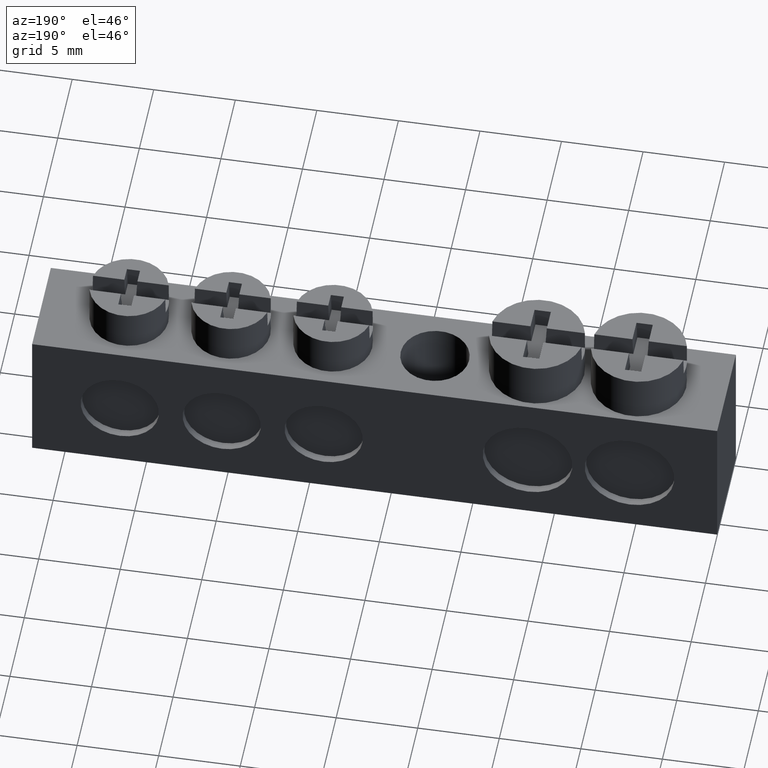
[diagram: clean part render]
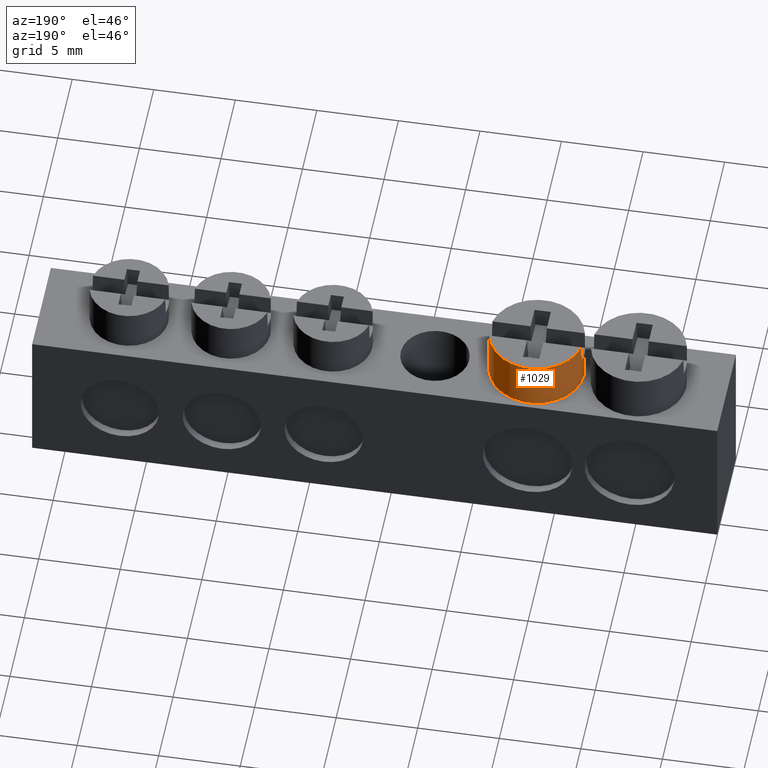
[diagram: same view with one face highlighted and labeled with its STEP entity id]
A machine part, auxiliary view. The second image highlights one B-rep face of the part: STEP entity #1029.
In plain terms, the highlighted cylindrical surface (partial cylindrical patch) has radius 2.9 mm, axis along (0, -0, 1).
Its self-contained STEP definition (entity closure, byte-faithful):
#1 =( BOUNDED_CURVE ( )  B_SPLINE_CURVE ( 3, ( #192, #202, #201, #197 ),
 .UNSPECIFIED., .F., .T. ) 
 B_SPLINE_CURVE_WITH_KNOTS ( ( 4, 4 ),
 ( 1.362394520203149800, 1.384510187386128700 ),
 .UNSPECIFIED. ) 
 CURVE ( )  GEOMETRIC_REPRESENTATION_ITEM ( )  RATIONAL_B_SPLINE_CURVE ( ( 1.000000000000000000, 0.9999592418540675900, 0.9999592418540675900, 1.000000000000000000 ) ) 
 REPRESENTATION_ITEM ( '' )  );
#4 =( BOUNDED_CURVE ( )  B_SPLINE_CURVE ( 3, ( #305, #295, #275, #314 ),
 .UNSPECIFIED., .F., .F. ) 
 B_SPLINE_CURVE_WITH_KNOTS ( ( 4, 4 ),
 ( 4.898675119793457700, 4.920790786976436200 ),
 .UNSPECIFIED. ) 
 CURVE ( )  GEOMETRIC_REPRESENTATION_ITEM ( )  RATIONAL_B_SPLINE_CURVE ( ( 1.000000000000000000, 0.9999592418540675900, 0.9999592418540675900, 1.000000000000000000 ) ) 
 REPRESENTATION_ITEM ( '' )  );
#62 = CARTESIAN_POINT ( 'NONE',  ( 8.625000000000000000, 3.250000000000001300, 9.000000000000003600 ) ) ;
#82 = LINE ( 'NONE', #62, #1542 ) ;
#84 = DIRECTION ( 'NONE',  ( 6.938880860708999700E-018, -9.513422018793010800E-021, 1.000000000000000000 ) ) ;
#186 = LINE ( 'NONE', #187, #1617 ) ;
#187 = CARTESIAN_POINT ( 'NONE',  ( 14.42500000000000100, 3.250000000000000900, 9.000000000000003600 ) ) ;
#188 = DIRECTION ( 'NONE',  ( 6.938880860708999700E-018, -9.513422018793010800E-021, 1.000000000000000000 ) ) ;
#192 = CARTESIAN_POINT ( 'NONE',  ( 14.36307214313215600, 3.846109478516538200, 12.00000000000000000 ) ) ;
#197 = CARTESIAN_POINT ( 'NONE',  ( 14.37556040118505700, 3.783202962478360300, 10.80000000000000100 ) ) ;
#201 = CARTESIAN_POINT ( 'NONE',  ( 14.37162960799144600, 3.804217405779411400, 11.20087625544946700 ) ) ;
#202 = CARTESIAN_POINT ( 'NONE',  ( 14.36746668563414700, 3.825187099144625500, 11.60089255937235800 ) ) ;
#203 = DIRECTION ( 'NONE',  ( 1.000000000000000000, 1.420678708774109300E-014, 0.0000000000000000000 ) ) ;
#208 = DIRECTION ( 'NONE',  ( -6.938880860708999700E-018, 9.513422018793010800E-021, -1.000000000000000000 ) ) ;
#222 = CARTESIAN_POINT ( 'NONE',  ( 11.52500000000000000, 3.250000000000000900, 10.80000000000000100 ) ) ;
#275 = CARTESIAN_POINT ( 'NONE',  ( 8.684121196396226600, 3.832979143020729800, 11.60089255937234200 ) ) ;
#280 = DIRECTION ( 'NONE',  ( -6.938880860708999700E-018, 9.513422018793010800E-021, -1.000000000000000000 ) ) ;
#282 = DIRECTION ( 'NONE',  ( 1.000000000000000000, 0.0000000000000000000, 0.0000000000000000000 ) ) ;
#285 = CARTESIAN_POINT ( 'NONE',  ( 11.52500000000000000, 3.250000000000000900, 10.80000000000000100 ) ) ;
#295 = CARTESIAN_POINT ( 'NONE',  ( 8.679900789590391200, 3.812020943461195400, 11.20087625544946000 ) ) ;
#305 = CARTESIAN_POINT ( 'NONE',  ( 8.675912388368681500, 3.791017357622614300, 10.80000000000000100 ) ) ;
#314 = CARTESIAN_POINT ( 'NONE',  ( 8.688573092738320000, 3.853889393649150700, 12.00000000000000000 ) ) ;
#373 = CARTESIAN_POINT ( 'NONE',  ( 11.52500000000000000, 3.250000000000000900, 12.00000000000000000 ) ) ;
#379 = CARTESIAN_POINT ( 'NONE',  ( 11.52500000000000000, 3.250000000000000900, 9.000000000000003600 ) ) ;
#383 = DIRECTION ( 'NONE',  ( 1.000000000000000000, 8.972707634362796300E-016, 0.0000000000000000000 ) ) ;
#387 = DIRECTION ( 'NONE',  ( 1.000000000000000000, 0.0000000000000000000, 0.0000000000000000000 ) ) ;
#391 = DIRECTION ( 'NONE',  ( 6.938880860708999700E-018, -9.513422018793010800E-021, 1.000000000000000000 ) ) ;
#393 = DIRECTION ( 'NONE',  ( -6.938880860708999700E-018, 9.513422018793010800E-021, -1.000000000000000000 ) ) ;
#951 = EDGE_LOOP ( 'NONE', ( #991, #1004, #990, #974, #1018, #1016, #953, #1014 ) ) ;
#953 = ORIENTED_EDGE ( 'NONE', *, *, #1157, .T. ) ;
#974 = ORIENTED_EDGE ( 'NONE', *, *, #1187, .T. ) ;
#990 = ORIENTED_EDGE ( 'NONE', *, *, #1188, .T. ) ;
#991 = ORIENTED_EDGE ( 'NONE', *, *, #1217, .T. ) ;
#1004 = ORIENTED_EDGE ( 'NONE', *, *, #1133, .T. ) ;
#1014 = ORIENTED_EDGE ( 'NONE', *, *, #1154, .F. ) ;
#1016 = ORIENTED_EDGE ( 'NONE', *, *, #1156, .T. ) ;
#1018 = ORIENTED_EDGE ( 'NONE', *, *, #1215, .T. ) ;
#1029 = ADVANCED_FACE ( 'NONE', ( #3105 ), #3103, .T. ) ;
#1133 = EDGE_CURVE ( 'NONE', #2906, #2825, #82, .T. ) ;
#1154 = EDGE_CURVE ( 'NONE', #2893, #2918, #186, .T. ) ;
#1156 = EDGE_CURVE ( 'NONE', #2844, #2921, #1, .T. ) ;
#1157 = EDGE_CURVE ( 'NONE', #2921, #2918, #1604, .T. ) ;
#1187 = EDGE_CURVE ( 'NONE', #2887, #2892, #4, .T. ) ;
#1188 = EDGE_CURVE ( 'NONE', #2825, #2887, #1627, .T. ) ;
#1215 = EDGE_CURVE ( 'NONE', #2892, #2844, #1659, .T. ) ;
#1217 = EDGE_CURVE ( 'NONE', #2893, #2906, #1656, .T. ) ;
#1461 = AXIS2_PLACEMENT_3D ( 'NONE', #3063, #3090, #3083 ) ;
#1542 = VECTOR ( 'NONE', #84, 1000.000000000000000 ) ;
#1568 = AXIS2_PLACEMENT_3D ( 'NONE', #222, #208, #203 ) ;
#1604 = CIRCLE ( 'NONE', #1568, 2.899999999999999900 ) ;
#1617 = VECTOR ( 'NONE', #188, 1000.000000000000000 ) ;
#1627 = CIRCLE ( 'NONE', #1643, 2.899999999999999900 ) ;
#1639 = AXIS2_PLACEMENT_3D ( 'NONE', #373, #393, #383 ) ;
#1641 = AXIS2_PLACEMENT_3D ( 'NONE', #379, #391, #387 ) ;
#1643 = AXIS2_PLACEMENT_3D ( 'NONE', #285, #280, #282 ) ;
#1656 = CIRCLE ( 'NONE', #1641, 2.899999999999999900 ) ;
#1659 = CIRCLE ( 'NONE', #1639, 2.899999999999999900 ) ;
#2053 = CARTESIAN_POINT ( 'NONE',  ( 8.625000000000000000, 3.250000000000001300, 10.80000000000000100 ) ) ;
#2089 = CARTESIAN_POINT ( 'NONE',  ( 14.36307214313215600, 3.846109478516538200, 12.00000000000000000 ) ) ;
#2092 = CARTESIAN_POINT ( 'NONE',  ( 8.688573092738320000, 3.853889393649150700, 12.00000000000000000 ) ) ;
#2104 = CARTESIAN_POINT ( 'NONE',  ( 14.42500000000000100, 3.250000000000000900, 9.000000000000003600 ) ) ;
#2105 = CARTESIAN_POINT ( 'NONE',  ( 14.37556040118505700, 3.783202962478360300, 10.80000000000000100 ) ) ;
#2109 = CARTESIAN_POINT ( 'NONE',  ( 8.625000000000000000, 3.250000000000001300, 9.000000000000003600 ) ) ;
#2114 = CARTESIAN_POINT ( 'NONE',  ( 8.675912388368681500, 3.791017357622614300, 10.80000000000000100 ) ) ;
#2148 = CARTESIAN_POINT ( 'NONE',  ( 14.42500000000000100, 3.250000000000000900, 10.80000000000000100 ) ) ;
#2825 = VERTEX_POINT ( 'NONE', #2053 ) ;
#2844 = VERTEX_POINT ( 'NONE', #2089 ) ;
#2887 = VERTEX_POINT ( 'NONE', #2114 ) ;
#2892 = VERTEX_POINT ( 'NONE', #2092 ) ;
#2893 = VERTEX_POINT ( 'NONE', #2104 ) ;
#2906 = VERTEX_POINT ( 'NONE', #2109 ) ;
#2918 = VERTEX_POINT ( 'NONE', #2148 ) ;
#2921 = VERTEX_POINT ( 'NONE', #2105 ) ;
#3063 = CARTESIAN_POINT ( 'NONE',  ( 11.52500000000000000, 3.250000000000000900, 9.000000000000003600 ) ) ;
#3083 = DIRECTION ( 'NONE',  ( 1.000000000000000000, 0.0000000000000000000, 0.0000000000000000000 ) ) ;
#3090 = DIRECTION ( 'NONE',  ( 6.938880860708999700E-018, -9.513422018793010800E-021, 1.000000000000000000 ) ) ;
#3103 = CYLINDRICAL_SURFACE ( 'NONE', #1461, 2.899999999999999900 ) ;
#3105 = FACE_OUTER_BOUND ( 'NONE', #951, .T. ) ;